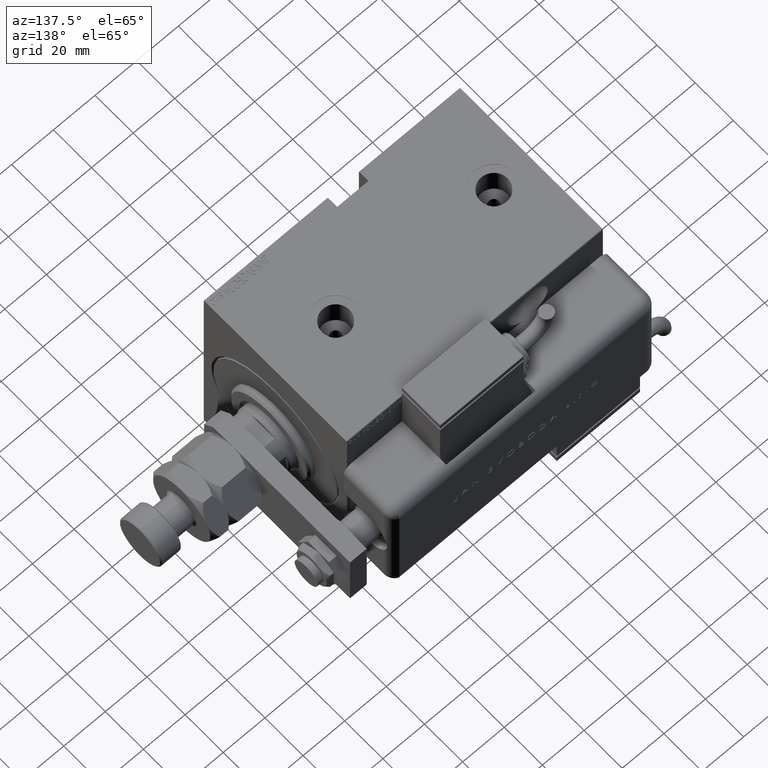
[diagram: clean part render]
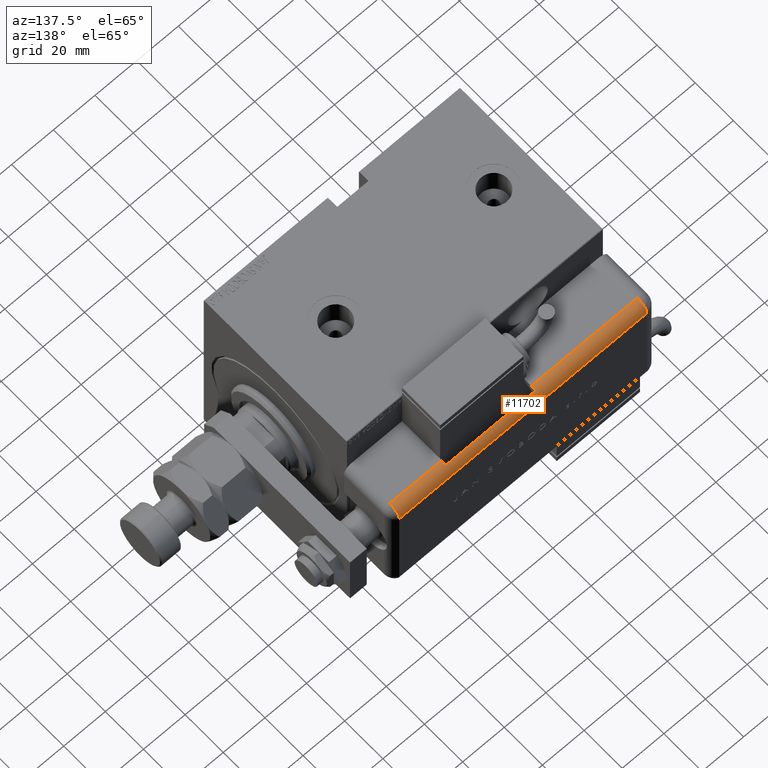
[diagram: same view with one face highlighted and labeled with its STEP entity id]
A machine part, auxiliary view. The second image highlights one B-rep face of the part: STEP entity #11702.
In plain terms, the highlighted cylindrical surface (edge-blend (fillet) strip) has radius 5 mm, axis along (-1, -0, -0).
Its self-contained STEP definition (entity closure, byte-faithful):
#477 = VERTEX_POINT ( 'NONE', #44714 ) ;
#1320 = ORIENTED_EDGE ( 'NONE', *, *, #56255, .F. ) ;
#2257 = AXIS2_PLACEMENT_3D ( 'NONE', #35394, #7255, #16910 ) ;
#3212 = DIRECTION ( 'NONE',  ( -0.000000000000000000, -0.000000000000000000, 1.000000000000000000 ) ) ;
#3243 = EDGE_CURVE ( 'NONE', #49807, #22850, #20463, .T. ) ;
#3547 = CARTESIAN_POINT ( 'NONE',  ( -23.99999999999999645, 20.79999999999998295, 5.000000000000004441 ) ) ;
#4437 = DIRECTION ( 'NONE',  ( 0.000000000000000000, -0.000000000000000000, -1.000000000000000000 ) ) ;
#5054 = CARTESIAN_POINT ( 'NONE',  ( -23.99999999999999645, 20.79999999999998295, 99.00000000000000000 ) ) ;
#5230 = ORIENTED_EDGE ( 'NONE', *, *, #44065, .T. ) ;
#5377 = CARTESIAN_POINT ( 'NONE',  ( -28.99999999999999645, 20.79999999999998295, 124.0000000000000000 ) ) ;
#6689 = VECTOR ( 'NONE', #38913, 1000.000000000000000 ) ;
#6829 = ORIENTED_EDGE ( 'NONE', *, *, #49853, .F. ) ;
#7255 = DIRECTION ( 'NONE',  ( -0.000000000000000000, -0.000000000000000000, 1.000000000000000000 ) ) ;
#9927 = VECTOR ( 'NONE', #11389, 1000.000000000000000 ) ;
#10996 = VECTOR ( 'NONE', #26390, 1000.000000000000000 ) ;
#11389 = DIRECTION ( 'NONE',  ( 0.000000000000000000, 0.000000000000000000, -1.000000000000000000 ) ) ;
#11702 = ADVANCED_FACE ( 'NONE', ( #59499 ), #35435, .T. ) ;
#11816 = CARTESIAN_POINT ( 'NONE',  ( -23.99999999999999645, 25.79999999999998295, 5.000000000000004441 ) ) ;
#13971 = EDGE_CURVE ( 'NONE', #61451, #49807, #17179, .T. ) ;
#14377 = CIRCLE ( 'NONE', #57340, 5.000000000000000888 ) ;
#14836 = EDGE_CURVE ( 'NONE', #22850, #40592, #36215, .T. ) ;
#16274 = CARTESIAN_POINT ( 'NONE',  ( -28.99999999999999645, 20.79999999999998295, 5.000000000000004441 ) ) ;
#16363 = CARTESIAN_POINT ( 'NONE',  ( -28.48998886412872267, 22.99999999999998934, 124.0000000000000000 ) ) ;
#16910 = DIRECTION ( 'NONE',  ( -1.000000000000000000, 4.163336342344336238E-15, 0.000000000000000000 ) ) ;
#16932 = DIRECTION ( 'NONE',  ( -1.000000000000000000, 0.000000000000000000, 0.000000000000000000 ) ) ;
#17179 = CIRCLE ( 'NONE', #53168, 5.000000000000000888 ) ;
#17577 = DIRECTION ( 'NONE',  ( -0.000000000000000000, -0.000000000000000000, 1.000000000000000000 ) ) ;
#17888 = CARTESIAN_POINT ( 'NONE',  ( -28.99999999999999645, 20.79999999999998295, 56.00000000000000711 ) ) ;
#18045 = ORIENTED_EDGE ( 'NONE', *, *, #14836, .F. ) ;
#18218 = CARTESIAN_POINT ( 'NONE',  ( -28.99999999999999645, 20.79999999999998295, 124.0000000000000000 ) ) ;
#20248 = AXIS2_PLACEMENT_3D ( 'NONE', #49826, #59810, #30438 ) ;
#20463 = LINE ( 'NONE', #16363, #9927 ) ;
#20524 = AXIS2_PLACEMENT_3D ( 'NONE', #60731, #3212, #16932 ) ;
#22850 = VERTEX_POINT ( 'NONE', #35987 ) ;
#24110 = DIRECTION ( 'NONE',  ( 1.000000000000000000, 0.000000000000000000, 0.000000000000000000 ) ) ;
#24236 = LINE ( 'NONE', #38307, #6689 ) ;
#24748 = VERTEX_POINT ( 'NONE', #5377 ) ;
#26390 = DIRECTION ( 'NONE',  ( 0.000000000000000000, 0.000000000000000000, -1.000000000000000000 ) ) ;
#27613 = LINE ( 'NONE', #18218, #40716 ) ;
#28233 = DIRECTION ( 'NONE',  ( -1.000000000000000000, 0.000000000000000000, 0.000000000000000000 ) ) ;
#29725 = CARTESIAN_POINT ( 'NONE',  ( -28.99999999999999645, 20.79999999999998295, 99.00000000000000000 ) ) ;
#30251 = EDGE_CURVE ( 'NONE', #40592, #40849, #55493, .T. ) ;
#30438 = DIRECTION ( 'NONE',  ( -1.000000000000000000, 0.000000000000000000, 0.000000000000000000 ) ) ;
#31504 = EDGE_LOOP ( 'NONE', ( #18045, #41663, #52433, #50487, #6829, #1320, #5230, #38799 ) ) ;
#35394 = CARTESIAN_POINT ( 'NONE',  ( -23.99999999999999645, 20.79999999999998295, 56.00000000000000711 ) ) ;
#35435 = CYLINDRICAL_SURFACE ( 'NONE', #20248, 5.000000000000000888 ) ;
#35987 = CARTESIAN_POINT ( 'NONE',  ( -28.48998886412872267, 22.99999999999998934, 56.00000000000000711 ) ) ;
#36215 = CIRCLE ( 'NONE', #2257, 5.000000000000000888 ) ;
#36459 = CIRCLE ( 'NONE', #20524, 5.000000000000000888 ) ;
#37304 = DIRECTION ( 'NONE',  ( 0.000000000000000000, 0.000000000000000000, -1.000000000000000000 ) ) ;
#38307 = CARTESIAN_POINT ( 'NONE',  ( -23.99999999999999645, 25.79999999999998295, 124.0000000000000000 ) ) ;
#38799 = ORIENTED_EDGE ( 'NONE', *, *, #30251, .F. ) ;
#38913 = DIRECTION ( 'NONE',  ( -0.000000000000000000, -0.000000000000000000, 1.000000000000000000 ) ) ;
#40103 = CARTESIAN_POINT ( 'NONE',  ( -28.48998886412872267, 22.99999999999998934, 99.00000000000000000 ) ) ;
#40592 = VERTEX_POINT ( 'NONE', #17888 ) ;
#40716 = VECTOR ( 'NONE', #37304, 1000.000000000000000 ) ;
#40849 = VERTEX_POINT ( 'NONE', #16274 ) ;
#41663 = ORIENTED_EDGE ( 'NONE', *, *, #3243, .F. ) ;
#43744 = VERTEX_POINT ( 'NONE', #11816 ) ;
#44065 = EDGE_CURVE ( 'NONE', #43744, #40849, #14377, .T. ) ;
#44714 = CARTESIAN_POINT ( 'NONE',  ( -23.99999999999999645, 25.79999999999998295, 124.0000000000000000 ) ) ;
#49807 = VERTEX_POINT ( 'NONE', #40103 ) ;
#49826 = CARTESIAN_POINT ( 'NONE',  ( -23.99999999999999645, 20.79999999999998295, 124.0000000000000000 ) ) ;
#49853 = EDGE_CURVE ( 'NONE', #477, #24748, #36459, .T. ) ;
#50487 = ORIENTED_EDGE ( 'NONE', *, *, #59261, .F. ) ;
#51738 = CARTESIAN_POINT ( 'NONE',  ( -28.99999999999999645, 20.79999999999998295, 124.0000000000000000 ) ) ;
#52433 = ORIENTED_EDGE ( 'NONE', *, *, #13971, .F. ) ;
#53168 = AXIS2_PLACEMENT_3D ( 'NONE', #5054, #4437, #24110 ) ;
#55493 = LINE ( 'NONE', #51738, #10996 ) ;
#56255 = EDGE_CURVE ( 'NONE', #43744, #477, #24236, .T. ) ;
#57340 = AXIS2_PLACEMENT_3D ( 'NONE', #3547, #17577, #28233 ) ;
#59261 = EDGE_CURVE ( 'NONE', #24748, #61451, #27613, .T. ) ;
#59499 = FACE_OUTER_BOUND ( 'NONE', #31504, .T. ) ;
#59810 = DIRECTION ( 'NONE',  ( 0.000000000000000000, 0.000000000000000000, -1.000000000000000000 ) ) ;
#60731 = CARTESIAN_POINT ( 'NONE',  ( -23.99999999999999645, 20.79999999999998295, 124.0000000000000000 ) ) ;
#61451 = VERTEX_POINT ( 'NONE', #29725 ) ;